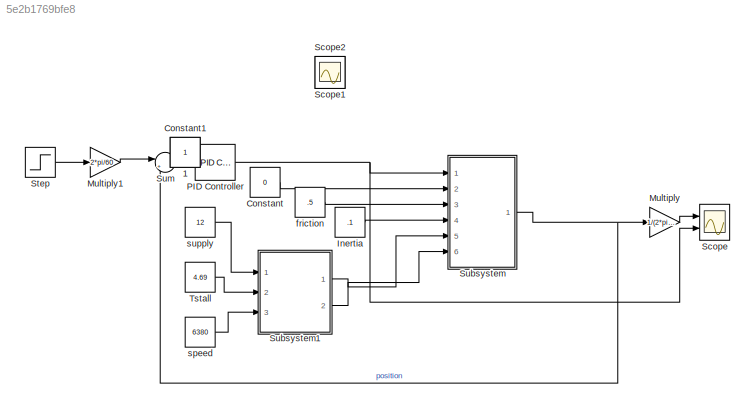
MODEL slx_5e2b1769bfe8
KIND model
CONFIG AbsTol = auto
CONFIG EnableMultiTasking = off
CONFIG FixedStep = auto
CONFIG MaxStep = .01
CONFIG MinStep = auto
CONFIG RelTol = 1e-3
CONFIG SampleTimeConstraint = Unconstrained
CONFIG Solver = VariableStepAuto
CONFIG SolverName = VariableStepAuto
CONFIG StartTime = 0.0
CONFIG StopTime = 5
BLOCK [Constant] 1
  IOType = siggen
BLOCK [Constant] Constant
  Value = 0
BLOCK [Constant] Constant1
  IOType = siggen
BLOCK [Constant] Inertia
  Value = .1
BLOCK [Gain] Multiply
  Gain = 1/(2*pi)*60
  OutDataTypeStr = Inherit: Inherit via internal rule
  ParamDataTypeStr = Inherit: Inherit via internal rule
  SaturateOnIntegerOverflow = off
BLOCK [Gain] Multiply1
  Gain = 2*pi/60
  OutDataTypeStr = Inherit: Inherit via internal rule
  ParamDataTypeStr = Inherit: Inherit via internal rule
  SaturateOnIntegerOverflow = off
BLOCK [Reference] PID Controller  REF=simulink/Continuous/PID Controller
  Ports = [1, 1]
  SourceBlock = simulink/Continuous/PID Controller
  SourceProductBaseCode = SL
  SourceProductName = Simulink
  SourceType = PID 1dof
BLOCK [Scope] Scope
  Floating = off
  NumInputPorts = 2
  Ports = [2]
  ScopeSpecificationString = Simulink.scopes.TimeScopeBlockCfg('CurrentConfiguration', extmgr.ConfigurationSet(extmgr.Configuration('Core','General UI',true),extmgr.Configuration('Core','Source UI',true),extmgr.Configuration('Sources','WiredSimulink',true),extmgr.Configuration('Visuals','Time Domain',true,'SerializedDisplays',{struct('MinYLimReal','-1763.02906','MaxYLimReal','10207.69757','YLabelReal','','MinYLimMag','  0.000...<+1424ch>
BLOCK [Scope] Scope1
  Floating = off
  IOType = viewer
  NumInputPorts = 1
  Ports = []
  ScopeSpecificationString = Simulink.scopes.TimeScopeBlockCfg('CurrentConfiguration', extmgr.ConfigurationSet(extmgr.Configuration('Core','General UI',true),extmgr.Configuration('Core','Source UI',true),extmgr.Configuration('Sources','WiredSimulink',true,'DataLoggingVariableName','ScopeData1'),extmgr.Configuration('Visuals','Time Domain',true,'SerializedDisplays',{struct('MinYLimReal','0.0002993494','MaxYLimReal','0.00029935...<+1514ch>
BLOCK [Scope] Scope2
  Floating = off
  IOType = viewer
  NumInputPorts = 1
  Ports = []
  ScopeSpecificationString = Simulink.scopes.TimeScopeBlockCfg('CurrentConfiguration', extmgr.ConfigurationSet(extmgr.Configuration('Core','General UI',true),extmgr.Configuration('Core','Source UI',true),extmgr.Configuration('Sources','WiredSimulink',true,'DataLoggingVariableName','ScopeData1'),extmgr.Configuration('Visuals','Time Domain',true,'SerializedDisplays',{struct('MinYLimReal','0.00796','MaxYLimReal','0.02796','YLabe...<+1921ch>
BLOCK [Step] Step
  After = 5000
  SampleTime = 0
  Time = 0
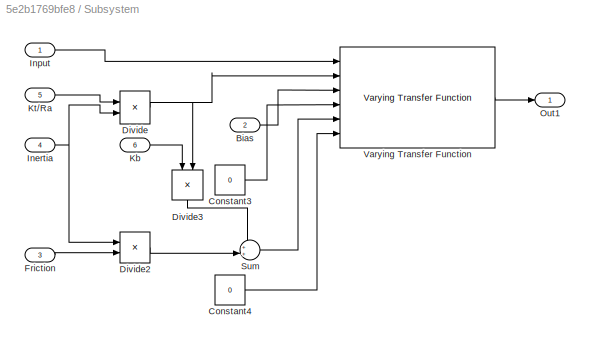
BLOCK [SubSystem] Subsystem
  Ports = [6, 1]
  RequestExecContextInheritance = off
BLOCK [Inport] Subsystem/Bias
  IconDisplay = Port number
  Port = 2
BLOCK [Constant] Subsystem/Constant3
  Value = 0
BLOCK [Constant] Subsystem/Constant4
  Value = 0
BLOCK [Product] Subsystem/Divide
  InputSameDT = off
  Inputs = */
  OutDataTypeStr = Inherit: Inherit via internal rule
  Ports = [2, 1]
  RndMeth = Floor
  SaturateOnIntegerOverflow = off
BLOCK [Product] Subsystem/Divide2
  InputSameDT = off
  Inputs = **
  OutDataTypeStr = Inherit: Inherit via internal rule
  Ports = [2, 1]
  RndMeth = Floor
  SaturateOnIntegerOverflow = off
BLOCK [Product] Subsystem/Divide3
  InputSameDT = off
  Inputs = **
  OutDataTypeStr = Inherit: Inherit via internal rule
  Ports = [2, 1]
  RndMeth = Floor
  SaturateOnIntegerOverflow = off
BLOCK [Inport] Subsystem/Friction
  IconDisplay = Port number
  Port = 3
BLOCK [Inport] Subsystem/Inertia
  IconDisplay = Port number
  Port = 4
BLOCK [Inport] Subsystem/Input
  IconDisplay = Port number
BLOCK [Inport] Subsystem/Kb
  IconDisplay = Port number
  Port = 6
BLOCK [Inport] Subsystem/Kt//Ra
  IconDisplay = Port number
  Port = 5
BLOCK [Outport] Subsystem/Out1
  IconDisplay = Port number
BLOCK [Sum] Subsystem/Sum
  IconShape = round
  InputSameDT = off
  Inputs = ++|
  OutDataTypeStr = Inherit: Inherit via internal rule
  Ports = [2, 1]
  SaturateOnIntegerOverflow = off
BLOCK [Reference] Subsystem/Varying Transfer Function  REF=cstblocks/Linear Parameter Varying/Varying Transfer Function
  Ports = [6, 1]
  SourceBlock = cstblocks/Linear Parameter Varying/Varying Transfer Function
  SourceProductBaseCode = CT
  SourceProductName = Control System Toolbox
  SourceType = Varying Transfer Function
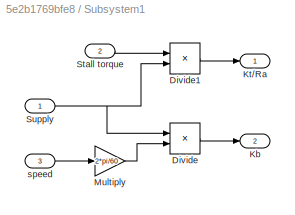
BLOCK [SubSystem] Subsystem1
  Ports = [3, 2]
  RequestExecContextInheritance = off
BLOCK [Product] Subsystem1/Divide
  InputSameDT = off
  Inputs = */
  OutDataTypeStr = Inherit: Inherit via internal rule
  Ports = [2, 1]
  RndMeth = Floor
  SaturateOnIntegerOverflow = off
BLOCK [Product] Subsystem1/Divide1
  InputSameDT = off
  Inputs = */
  OutDataTypeStr = Inherit: Inherit via internal rule
  Ports = [2, 1]
  RndMeth = Floor
  SaturateOnIntegerOverflow = off
BLOCK [Outport] Subsystem1/Kb
  IconDisplay = Port number
  Port = 2
BLOCK [Outport] Subsystem1/Kt//Ra
  IconDisplay = Port number
BLOCK [Gain] Subsystem1/Multiply
  Gain = 2*pi/60
  OutDataTypeStr = Inherit: Inherit via internal rule
  ParamDataTypeStr = Inherit: Inherit via internal rule
  SaturateOnIntegerOverflow = off
BLOCK [Inport] Subsystem1/Stall torque
  IconDisplay = Port number
  Port = 2
BLOCK [Inport] Subsystem1/Supply
  IconDisplay = Port number
BLOCK [Inport] Subsystem1/speed
  IconDisplay = Port number
  Port = 3
BLOCK [Sum] Sum
  IconShape = round
  InputSameDT = off
  Inputs = |+-
  OutDataTypeStr = Inherit: Inherit via internal rule
  Ports = [2, 1]
  SaturateOnIntegerOverflow = off
BLOCK [Constant] Tstall
  Value = 4.69
BLOCK [Constant] friction
  Value = .5
BLOCK [Constant] speed
  Value = 6380
BLOCK [Constant] supply
  Value = 12
LINE Constant:1 -> Subsystem:2
LINE Inertia:1 -> Subsystem:4
LINE Multiply1:1 -> Sum:1
LINE Multiply:1 -> Scope:1
NET PID Controller:1 -> Scope:2, Subsystem:1
LINE Step:1 -> Multiply1:1
LINE Subsystem/Bias:1 -> Subsystem/Varying Transfer Function:3
LINE Subsystem/Constant3:1 -> Subsystem/Varying Transfer Function:4
LINE Subsystem/Constant4:1 -> Subsystem/Varying Transfer Function:6
LINE Subsystem/Divide2:1 -> Subsystem/Sum:2
LINE Subsystem/Divide3:1 -> Subsystem/Sum:1
NET Subsystem/Divide:1 -> Subsystem/Divide3:2, Subsystem/Varying Transfer Function:2
LINE Subsystem/Friction:1 -> Subsystem/Divide2:2
NET Subsystem/Inertia:1 -> Subsystem/Divide2:1, Subsystem/Divide:2
LINE Subsystem/Input:1 -> Subsystem/Varying Transfer Function:1
LINE Subsystem/Kb:1 -> Subsystem/Divide3:1
LINE Subsystem/Kt//Ra:1 -> Subsystem/Divide:1
LINE Subsystem/Sum:1 -> Subsystem/Varying Transfer Function:5
LINE Subsystem/Varying Transfer Function:1 -> Subsystem/Out1:1
LINE Subsystem1/Divide1:1 -> Subsystem1/Kt//Ra:1
LINE Subsystem1/Divide:1 -> Subsystem1/Kb:1
LINE Subsystem1/Multiply:1 -> Subsystem1/Divide:2
LINE Subsystem1/Stall torque:1 -> Subsystem1/Divide1:1
NET Subsystem1/Supply:1 -> Subsystem1/Divide1:2, Subsystem1/Divide:1
LINE Subsystem1/speed:1 -> Subsystem1/Multiply:1
LINE Subsystem1:1 -> Subsystem:5
LINE Subsystem1:2 -> Subsystem:6
NET Subsystem:1 -> Multiply:1, Sum:2
LINE Sum:1 -> PID Controller:1
LINE Tstall:1 -> Subsystem1:2
LINE friction:1 -> Subsystem:3
LINE speed:1 -> Subsystem1:3
LINE supply:1 -> Subsystem1:1
note: NET lines group one-source signal fan-out (src -> all destinations, sorted); 1:1 wires keep LINE
